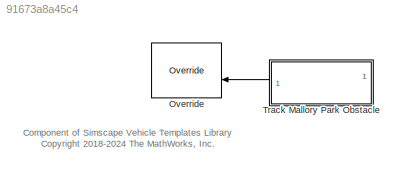
MODEL slx_91673a8a45c4
KIND library
CONFIG AbsTol = auto
CONFIG EnableMultiTasking = off
CONFIG FixedStep = auto
CONFIG MaxStep = auto
CONFIG MinStep = auto
CONFIG RelTol = 1e-3
CONFIG SampleTimeConstraint = Unconstrained
CONFIG SolverName = VariableStepAuto
CONFIG StartTime = 0.0
CONFIG StopTime = 10.0
BLOCK [Reference] Override  REF=Driver_Override_vx_Obstacle/Override
  SourceBlock = Driver_Override_vx_Obstacle/Override
  SourceType = Driver Override Two Traffic Lights
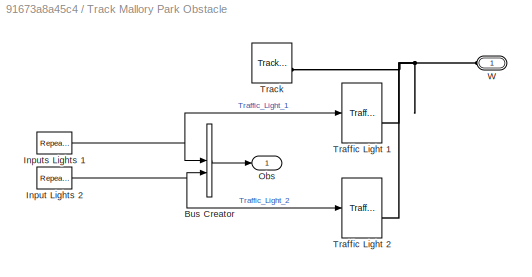
BLOCK [SubSystem] Track Mallory Park Obstacle
BLOCK [BusCreator] Track Mallory Park Obstacle/Bus Creator
  DisplayOption = bar
  InheritFromInputs = on
  Inputs = 2
BLOCK [Reference] Track Mallory Park Obstacle/Input Lights 2  REF=simulink/Sources/Repeating
Sequence
  SourceBlock = simulink/Sources/Repeating\nSequence
  SourceType = Repeating table
BLOCK [Reference] Track Mallory Park Obstacle/Inputs Lights 1  REF=simulink/Sources/Repeating
Sequence
  NameLocation = top
  SourceBlock = simulink/Sources/Repeating\nSequence
  SourceType = Repeating table
BLOCK [Outport] Track Mallory Park Obstacle/Obs
  VectorParamsAs1DForOutWhenUnconnected = off
BLOCK [Reference] Track Mallory Park Obstacle/Track  REF=Scene_Utilities/Track Extrusion
  SourceBlock = Scene_Utilities/Track Extrusion
BLOCK [Reference] Track Mallory Park Obstacle/Traffic Light 1  REF=Object_Traffic_Light/Traffic Light Pole
  SourceBlock = Object_Traffic_Light/Traffic Light Pole
BLOCK [Reference] Track Mallory Park Obstacle/Traffic Light 2  REF=Object_Traffic_Light/Traffic Light Pole
  SourceBlock = Object_Traffic_Light/Traffic Light Pole
BLOCK [PMIOPort] Track Mallory Park Obstacle/W
  Side = Left
ANNOTATION (root): Component of Simscape Vehicle Templates Library <copyright redacted>
LINE Track Mallory Park Obstacle/Bus Creator:1 -> Track Mallory Park Obstacle/Obs:1
NET Track Mallory Park Obstacle/Input Lights 2:1 -> Track Mallory Park Obstacle/Bus Creator:2, Track Mallory Park Obstacle/Traffic Light 2:1
NET Track Mallory Park Obstacle/Inputs Lights 1:1 -> Track Mallory Park Obstacle/Bus Creator:1, Track Mallory Park Obstacle/Traffic Light 1:1
LINE Track Mallory Park Obstacle:1 -> Override:2
PNET net1: Track Mallory Park Obstacle/Track:RConn1 -- Track Mallory Park Obstacle/Traffic Light 1:RConn1 -- Track Mallory Park Obstacle/Traffic Light 2:RConn1 -- Track Mallory Park Obstacle/W:RConn1
note: NET lines group one-source signal fan-out (src -> all destinations, sorted); 1:1 wires keep LINE; PNET lines group multi-terminal physical nets as a canonical sorted terminal list (undirected conserving connections); 2-terminal nets keep the pairwise PLINE form
